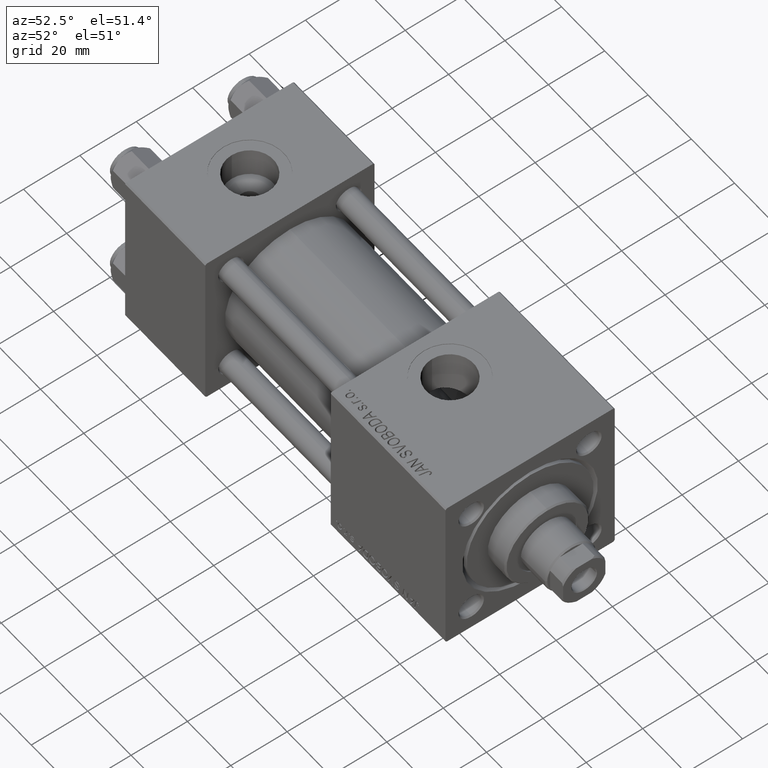
[diagram: clean part render]
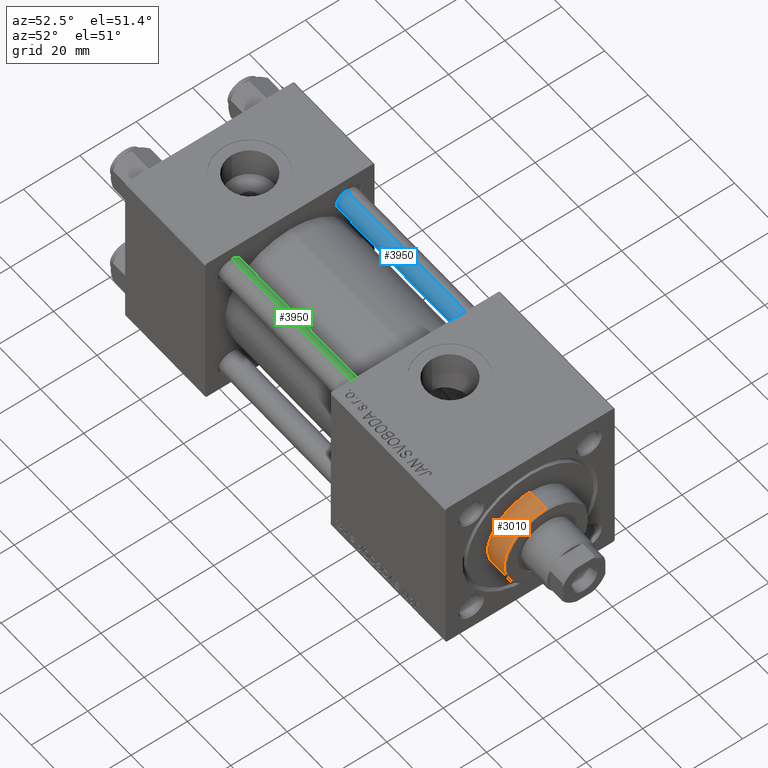
[diagram: same view with three faces highlighted in distinct colors, each labeled with its STEP entity id]
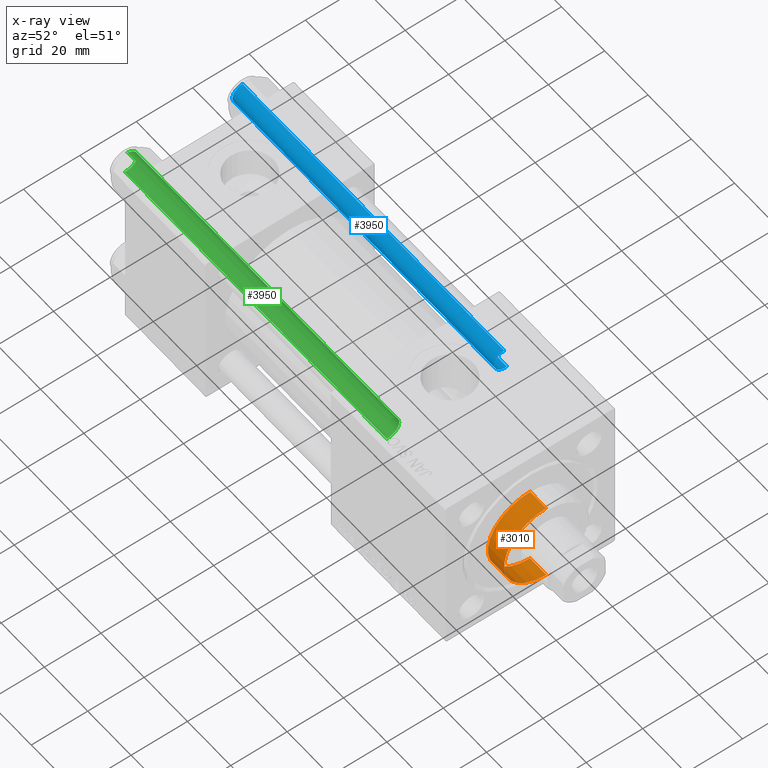
[diagram: x-ray of the same camera — body ghosted, the three highlighted faces saturated]
A machine part, auxiliary view with three faces highlighted in distinct colors.
The next image is the same camera in x-ray (body ghosted, the three faces saturated) — at least one of them is partly hidden behind the body in this view.
Their STEP definitions:

[orange] entity #3010 — the highlighted cylindrical surface (partial cylindrical patch) has radius 15 mm, axis along (-1, -0, -0).
#2043 = CARTESIAN_POINT ( 'NONE',  ( -15.00000000000000000, 0.000000000000000000, 36.20000000000000284 ) ) ;
#2330 = DIRECTION ( 'NONE',  ( -1.000000000000000000, 0.000000000000000000, 0.000000000000000000 ) ) ;
#3010 = ADVANCED_FACE ( 'NONE', ( #3355 ), #51398, .T. ) ;
#3355 = FACE_OUTER_BOUND ( 'NONE', #30016, .T. ) ;
#4282 = AXIS2_PLACEMENT_3D ( 'NONE', #17384, #26286, #50187 ) ;
#5316 = CARTESIAN_POINT ( 'NONE',  ( -15.00000000000000000, 0.000000000000000000, 28.69999999999999929 ) ) ;
#6203 = VERTEX_POINT ( 'NONE', #5316 ) ;
#7297 = DIRECTION ( 'NONE',  ( -0.000000000000000000, -0.000000000000000000, -1.000000000000000000 ) ) ;
#7411 = VERTEX_POINT ( 'NONE', #2043 ) ;
#7518 = CIRCLE ( 'NONE', #41866, 15.00000000000000000 ) ;
#8185 = LINE ( 'NONE', #43617, #24955 ) ;
#10470 = LINE ( 'NONE', #46690, #22331 ) ;
#16642 = CARTESIAN_POINT ( 'NONE',  ( 0.000000000000000000, 0.000000000000000000, 28.69999999999999929 ) ) ;
#17384 = CARTESIAN_POINT ( 'NONE',  ( 0.000000000000000000, 0.000000000000000000, 36.20000000000000284 ) ) ;
#20981 = EDGE_CURVE ( 'NONE', #41308, #43173, #10470, .T. ) ;
#22175 = CARTESIAN_POINT ( 'NONE',  ( 15.00000000000000000, 1.836970198721029589E-15, 36.20000000000000284 ) ) ;
#22331 = VECTOR ( 'NONE', #23568, 1000.000000000000000 ) ;
#23568 = DIRECTION ( 'NONE',  ( -0.000000000000000000, -0.000000000000000000, -1.000000000000000000 ) ) ;
#24463 = ORIENTED_EDGE ( 'NONE', *, *, #20981, .F. ) ;
#24955 = VECTOR ( 'NONE', #35472, 1000.000000000000000 ) ;
#25502 = DIRECTION ( 'NONE',  ( 0.000000000000000000, 0.000000000000000000, 1.000000000000000000 ) ) ;
#26286 = DIRECTION ( 'NONE',  ( 0.000000000000000000, 0.000000000000000000, -1.000000000000000000 ) ) ;
#27613 = EDGE_CURVE ( 'NONE', #7411, #6203, #8185, .T. ) ;
#29539 = AXIS2_PLACEMENT_3D ( 'NONE', #30913, #7297, #2330 ) ;
#30016 = EDGE_LOOP ( 'NONE', ( #24463, #37120, #51623, #34041 ) ) ;
#30913 = CARTESIAN_POINT ( 'NONE',  ( 0.000000000000000000, 0.000000000000000000, 36.69999999999999574 ) ) ;
#31863 = DIRECTION ( 'NONE',  ( 1.000000000000000000, 0.000000000000000000, 0.000000000000000000 ) ) ;
#32766 = EDGE_CURVE ( 'NONE', #6203, #43173, #7518, .T. ) ;
#34041 = ORIENTED_EDGE ( 'NONE', *, *, #32766, .T. ) ;
#35472 = DIRECTION ( 'NONE',  ( -0.000000000000000000, -0.000000000000000000, -1.000000000000000000 ) ) ;
#37120 = ORIENTED_EDGE ( 'NONE', *, *, #51070, .T. ) ;
#37801 = CIRCLE ( 'NONE', #4282, 15.00000000000000000 ) ;
#40920 = CARTESIAN_POINT ( 'NONE',  ( 15.00000000000000000, 1.836970198721029589E-15, 28.69999999999999929 ) ) ;
#41308 = VERTEX_POINT ( 'NONE', #22175 ) ;
#41866 = AXIS2_PLACEMENT_3D ( 'NONE', #16642, #25502, #31863 ) ;
#43173 = VERTEX_POINT ( 'NONE', #40920 ) ;
#43617 = CARTESIAN_POINT ( 'NONE',  ( -15.00000000000000000, 0.000000000000000000, 36.69999999999999574 ) ) ;
#46690 = CARTESIAN_POINT ( 'NONE',  ( 15.00000000000000000, 1.836970198721029589E-15, 36.69999999999999574 ) ) ;
#50187 = DIRECTION ( 'NONE',  ( 1.000000000000000000, 0.000000000000000000, 0.000000000000000000 ) ) ;
#51070 = EDGE_CURVE ( 'NONE', #41308, #7411, #37801, .T. ) ;
#51398 = CYLINDRICAL_SURFACE ( 'NONE', #29539, 15.00000000000000000 ) ;
#51623 = ORIENTED_EDGE ( 'NONE', *, *, #27613, .T. ) ;

[blue] entity #3950 — the highlighted cylindrical surface (edge-blend (fillet) strip) has radius 4 mm, axis along (-1, 0, 0).
#877 = DIRECTION ( 'NONE',  ( 1.000000000000000000, 0.000000000000000000, 0.000000000000000000 ) ) ;
#1019 = DIRECTION ( 'NONE',  ( 1.000000000000000000, 0.000000000000000000, 0.000000000000000000 ) ) ;
#1938 = CARTESIAN_POINT ( 'NONE',  ( 4.000000000000000000, 4.898587196589411843E-16, 122.0000000000000000 ) ) ;
#2943 = AXIS2_PLACEMENT_3D ( 'NONE', #36813, #33150, #877 ) ;
#3887 = FACE_OUTER_BOUND ( 'NONE', #39470, .T. ) ;
#3950 = ADVANCED_FACE ( 'NONE', ( #3887 ), #8878, .T. ) ;
#5553 = VERTEX_POINT ( 'NONE', #10650 ) ;
#6766 = ORIENTED_EDGE ( 'NONE', *, *, #11660, .T. ) ;
#7949 = EDGE_CURVE ( 'NONE', #5553, #21008, #28790, .T. ) ;
#8091 = CARTESIAN_POINT ( 'NONE',  ( 0.000000000000000000, 0.000000000000000000, 122.0000000000000000 ) ) ;
#8849 = DIRECTION ( 'NONE',  ( -0.000000000000000000, -0.000000000000000000, -1.000000000000000000 ) ) ;
#8878 = CYLINDRICAL_SURFACE ( 'NONE', #41285, 4.000000000000000000 ) ;
#10291 = ORIENTED_EDGE ( 'NONE', *, *, #24493, .F. ) ;
#10650 = CARTESIAN_POINT ( 'NONE',  ( -4.000000000000000000, 0.000000000000000000, 121.5000000000000426 ) ) ;
#11029 = EDGE_CURVE ( 'NONE', #47349, #5553, #14713, .T. ) ;
#11660 = EDGE_CURVE ( 'NONE', #21008, #24665, #31488, .T. ) ;
#12829 = CARTESIAN_POINT ( 'NONE',  ( 0.000000000000000000, 0.000000000000000000, 0.5000000000000559552 ) ) ;
#14713 = CIRCLE ( 'NONE', #2943, 4.000000000000000000 ) ;
#18005 = CARTESIAN_POINT ( 'NONE',  ( -4.000000000000000000, 0.000000000000000000, 122.0000000000000000 ) ) ;
#18233 = CARTESIAN_POINT ( 'NONE',  ( 4.000000000000000000, 4.898587196589411843E-16, 121.5000000000000426 ) ) ;
#21008 = VERTEX_POINT ( 'NONE', #31182 ) ;
#21504 = VECTOR ( 'NONE', #25041, 1000.000000000000000 ) ;
#23153 = CARTESIAN_POINT ( 'NONE',  ( 4.000000000000000000, 4.898587196589411843E-16, 0.5000000000000559552 ) ) ;
#23833 = DIRECTION ( 'NONE',  ( -0.000000000000000000, -0.000000000000000000, -1.000000000000000000 ) ) ;
#23877 = ORIENTED_EDGE ( 'NONE', *, *, #7949, .T. ) ;
#24493 = EDGE_CURVE ( 'NONE', #47349, #24665, #33428, .T. ) ;
#24665 = VERTEX_POINT ( 'NONE', #23153 ) ;
#25041 = DIRECTION ( 'NONE',  ( -0.000000000000000000, -0.000000000000000000, -1.000000000000000000 ) ) ;
#26484 = AXIS2_PLACEMENT_3D ( 'NONE', #12829, #49046, #1019 ) ;
#27985 = VECTOR ( 'NONE', #8849, 1000.000000000000000 ) ;
#28790 = LINE ( 'NONE', #18005, #27985 ) ;
#30914 = ORIENTED_EDGE ( 'NONE', *, *, #11029, .T. ) ;
#31182 = CARTESIAN_POINT ( 'NONE',  ( -4.000000000000000000, 0.000000000000000000, 0.5000000000000559552 ) ) ;
#31488 = CIRCLE ( 'NONE', #26484, 4.000000000000000000 ) ;
#33150 = DIRECTION ( 'NONE',  ( 0.000000000000000000, 0.000000000000000000, -1.000000000000000000 ) ) ;
#33428 = LINE ( 'NONE', #1938, #21504 ) ;
#36813 = CARTESIAN_POINT ( 'NONE',  ( 0.000000000000000000, 0.000000000000000000, 121.5000000000000426 ) ) ;
#39470 = EDGE_LOOP ( 'NONE', ( #10291, #30914, #23877, #6766 ) ) ;
#40083 = DIRECTION ( 'NONE',  ( -1.000000000000000000, 0.000000000000000000, 0.000000000000000000 ) ) ;
#41285 = AXIS2_PLACEMENT_3D ( 'NONE', #8091, #23833, #40083 ) ;
#47349 = VERTEX_POINT ( 'NONE', #18233 ) ;
#49046 = DIRECTION ( 'NONE',  ( -0.000000000000000000, -0.000000000000000000, 1.000000000000000000 ) ) ;

[green] entity #3950 — the highlighted cylindrical surface (edge-blend (fillet) strip) has radius 4 mm, axis along (1, 0, -0).
#877 = DIRECTION ( 'NONE',  ( 1.000000000000000000, 0.000000000000000000, 0.000000000000000000 ) ) ;
#1019 = DIRECTION ( 'NONE',  ( 1.000000000000000000, 0.000000000000000000, 0.000000000000000000 ) ) ;
#1938 = CARTESIAN_POINT ( 'NONE',  ( 4.000000000000000000, 4.898587196589411843E-16, 122.0000000000000000 ) ) ;
#2943 = AXIS2_PLACEMENT_3D ( 'NONE', #36813, #33150, #877 ) ;
#3887 = FACE_OUTER_BOUND ( 'NONE', #39470, .T. ) ;
#3950 = ADVANCED_FACE ( 'NONE', ( #3887 ), #8878, .T. ) ;
#5553 = VERTEX_POINT ( 'NONE', #10650 ) ;
#6766 = ORIENTED_EDGE ( 'NONE', *, *, #11660, .T. ) ;
#7949 = EDGE_CURVE ( 'NONE', #5553, #21008, #28790, .T. ) ;
#8091 = CARTESIAN_POINT ( 'NONE',  ( 0.000000000000000000, 0.000000000000000000, 122.0000000000000000 ) ) ;
#8849 = DIRECTION ( 'NONE',  ( -0.000000000000000000, -0.000000000000000000, -1.000000000000000000 ) ) ;
#8878 = CYLINDRICAL_SURFACE ( 'NONE', #41285, 4.000000000000000000 ) ;
#10291 = ORIENTED_EDGE ( 'NONE', *, *, #24493, .F. ) ;
#10650 = CARTESIAN_POINT ( 'NONE',  ( -4.000000000000000000, 0.000000000000000000, 121.5000000000000426 ) ) ;
#11029 = EDGE_CURVE ( 'NONE', #47349, #5553, #14713, .T. ) ;
#11660 = EDGE_CURVE ( 'NONE', #21008, #24665, #31488, .T. ) ;
#12829 = CARTESIAN_POINT ( 'NONE',  ( 0.000000000000000000, 0.000000000000000000, 0.5000000000000559552 ) ) ;
#14713 = CIRCLE ( 'NONE', #2943, 4.000000000000000000 ) ;
#18005 = CARTESIAN_POINT ( 'NONE',  ( -4.000000000000000000, 0.000000000000000000, 122.0000000000000000 ) ) ;
#18233 = CARTESIAN_POINT ( 'NONE',  ( 4.000000000000000000, 4.898587196589411843E-16, 121.5000000000000426 ) ) ;
#21008 = VERTEX_POINT ( 'NONE', #31182 ) ;
#21504 = VECTOR ( 'NONE', #25041, 1000.000000000000000 ) ;
#23153 = CARTESIAN_POINT ( 'NONE',  ( 4.000000000000000000, 4.898587196589411843E-16, 0.5000000000000559552 ) ) ;
#23833 = DIRECTION ( 'NONE',  ( -0.000000000000000000, -0.000000000000000000, -1.000000000000000000 ) ) ;
#23877 = ORIENTED_EDGE ( 'NONE', *, *, #7949, .T. ) ;
#24493 = EDGE_CURVE ( 'NONE', #47349, #24665, #33428, .T. ) ;
#24665 = VERTEX_POINT ( 'NONE', #23153 ) ;
#25041 = DIRECTION ( 'NONE',  ( -0.000000000000000000, -0.000000000000000000, -1.000000000000000000 ) ) ;
#26484 = AXIS2_PLACEMENT_3D ( 'NONE', #12829, #49046, #1019 ) ;
#27985 = VECTOR ( 'NONE', #8849, 1000.000000000000000 ) ;
#28790 = LINE ( 'NONE', #18005, #27985 ) ;
#30914 = ORIENTED_EDGE ( 'NONE', *, *, #11029, .T. ) ;
#31182 = CARTESIAN_POINT ( 'NONE',  ( -4.000000000000000000, 0.000000000000000000, 0.5000000000000559552 ) ) ;
#31488 = CIRCLE ( 'NONE', #26484, 4.000000000000000000 ) ;
#33150 = DIRECTION ( 'NONE',  ( 0.000000000000000000, 0.000000000000000000, -1.000000000000000000 ) ) ;
#33428 = LINE ( 'NONE', #1938, #21504 ) ;
#36813 = CARTESIAN_POINT ( 'NONE',  ( 0.000000000000000000, 0.000000000000000000, 121.5000000000000426 ) ) ;
#39470 = EDGE_LOOP ( 'NONE', ( #10291, #30914, #23877, #6766 ) ) ;
#40083 = DIRECTION ( 'NONE',  ( -1.000000000000000000, 0.000000000000000000, 0.000000000000000000 ) ) ;
#41285 = AXIS2_PLACEMENT_3D ( 'NONE', #8091, #23833, #40083 ) ;
#47349 = VERTEX_POINT ( 'NONE', #18233 ) ;
#49046 = DIRECTION ( 'NONE',  ( -0.000000000000000000, -0.000000000000000000, 1.000000000000000000 ) ) ;